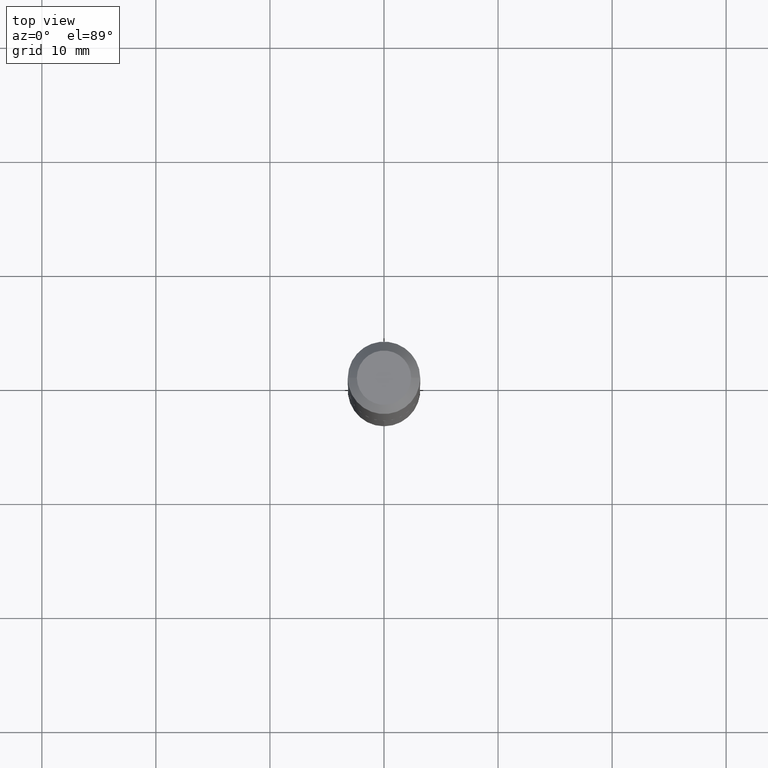
[diagram: clean part render]
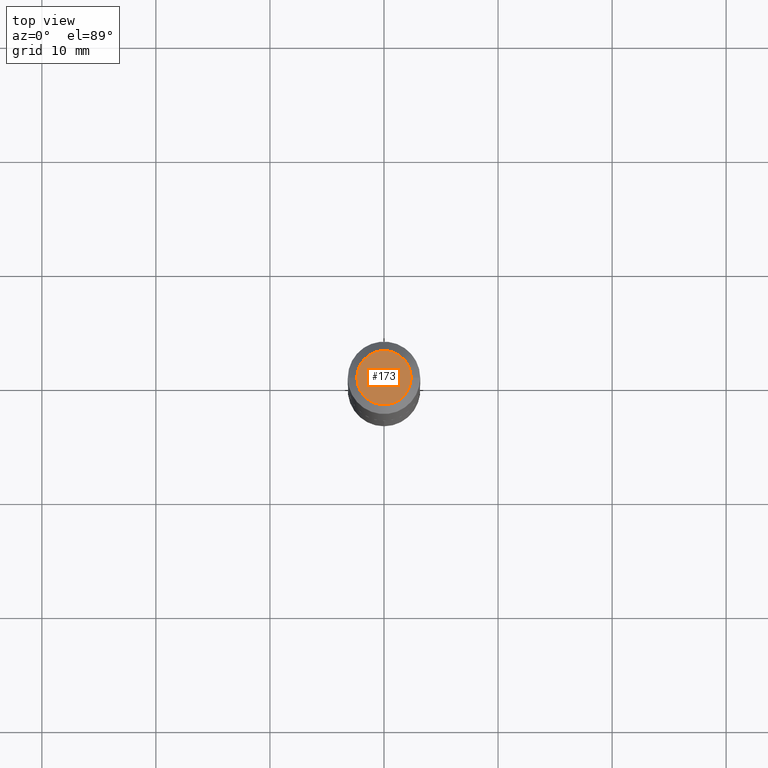
[diagram: same view with one face highlighted and labeled with its STEP entity id]
A machine part, top view. The second image highlights one B-rep face of the part: STEP entity #173.
In plain terms, the highlighted planar face has unit normal (0, -0, -1).
Its self-contained STEP definition (entity closure, byte-faithful):
#3 = EDGE_LOOP ( 'NONE', ( #100, #68 ) ) ;
#46 = DIRECTION ( 'NONE',  ( 1.000000000000000000, -6.982962677686266711E-15, 4.876115938594587387E-29 ) ) ;
#52 = CARTESIAN_POINT ( 'NONE',  ( -2.335971725809276970E-47, 3.335148527799642567E-33, 9.552245033349363524E-19 ) ) ;
#68 = ORIENTED_EDGE ( 'NONE', *, *, #106, .T. ) ;
#73 = DIRECTION ( 'NONE',  ( -2.445468806185136597E-29, 3.491481338843145583E-15, 1.000000000000000000 ) ) ;
#75 = AXIS2_PLACEMENT_3D ( 'NONE', #111, #172, #257 ) ;
#76 = CARTESIAN_POINT ( 'NONE',  ( -2.335971725809276970E-47, 3.335148527799642567E-33, 9.552245033349363524E-19 ) ) ;
#79 = DIRECTION ( 'NONE',  ( -2.445468806185136597E-29, 3.491481338843145583E-15, 1.000000000000000000 ) ) ;
#100 = ORIENTED_EDGE ( 'NONE', *, *, #158, .T. ) ;
#106 = EDGE_CURVE ( 'NONE', #338, #275, #341, .T. ) ;
#108 = AXIS2_PLACEMENT_3D ( 'NONE', #52, #79, #46 ) ;
#111 = CARTESIAN_POINT ( 'NONE',  ( -1.167985862904638485E-47, 1.667574263899821283E-33, 4.776122516674681762E-19 ) ) ;
#158 = EDGE_CURVE ( 'NONE', #275, #338, #325, .T. ) ;
#164 = CARTESIAN_POINT ( 'NONE',  ( 0.09374999999999998612, -8.049213644256857164E-16, 9.552245033400394890E-19 ) ) ;
#172 = DIRECTION ( 'NONE',  ( 2.438088387897960049E-29, -3.491481338843145188E-15, -1.000000000000000000 ) ) ;
#173 = ADVANCED_FACE ( 'NONE', ( #340 ), #380, .F. ) ;
#257 = DIRECTION ( 'NONE',  ( -1.000000000000000000, 6.982962677686265922E-15, -4.876176775795935793E-29 ) ) ;
#259 = DIRECTION ( 'NONE',  ( 1.000000000000000000, -6.982962677686266711E-15, 4.876115938594587387E-29 ) ) ;
#275 = VERTEX_POINT ( 'NONE', #280 ) ;
#280 = CARTESIAN_POINT ( 'NONE',  ( -0.09374999999999998612, 7.092071469525108711E-16, 9.552245033301675573E-19 ) ) ;
#325 = CIRCLE ( 'NONE', #108, 0.09374999999999998612 ) ;
#338 = VERTEX_POINT ( 'NONE', #164 ) ;
#340 = FACE_OUTER_BOUND ( 'NONE', #3, .T. ) ;
#341 = CIRCLE ( 'NONE', #385, 0.09374999999999998612 ) ;
#380 = PLANE ( 'NONE',  #75 ) ;
#385 = AXIS2_PLACEMENT_3D ( 'NONE', #76, #73, #259 ) ;